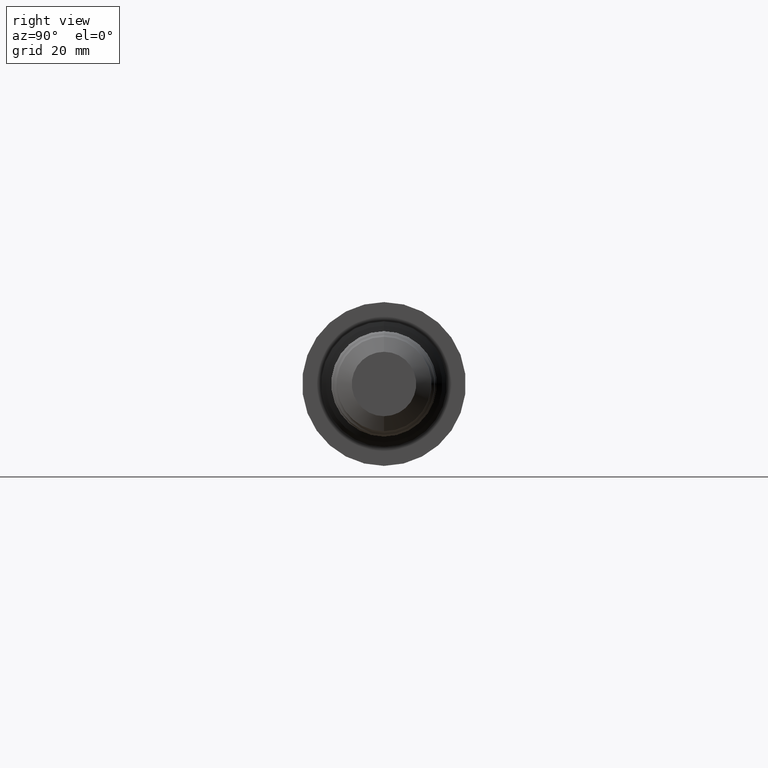
[diagram: clean part render]
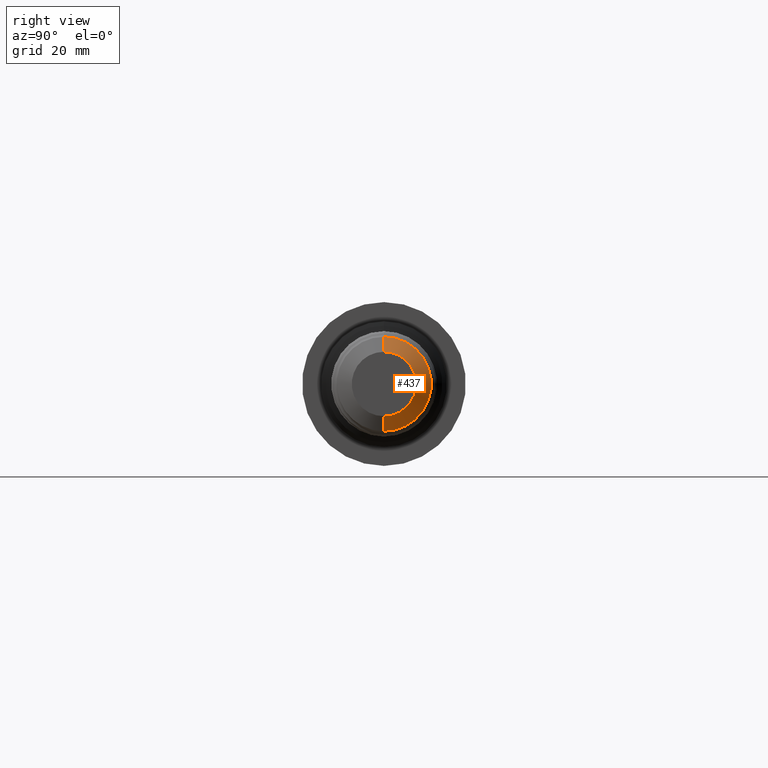
[diagram: same view with one face highlighted and labeled with its STEP entity id]
A machine part, right view. The second image highlights one B-rep face of the part: STEP entity #437.
In plain terms, the highlighted conical surface has half-angle 61 deg.
Its self-contained STEP definition (entity closure, byte-faithful):
#15 = ORIENTED_EDGE ( 'NONE', *, *, #916, .F. ) ;
#21 = DIRECTION ( 'NONE',  ( 0.0000000000000000000, 0.0000000000000000000, 1.000000000000000000 ) ) ;
#84 = CARTESIAN_POINT ( 'NONE',  ( 6.175000000000000711, 5.209647483572841703E-17, -0.4254000000000000004 ) ) ;
#86 = EDGE_CURVE ( 'NONE', #739, #327, #565, .T. ) ;
#97 = DIRECTION ( 'NONE',  ( -0.4848096202463349491, 0.0000000000000000000, 0.8746197071393968514 ) ) ;
#126 = ORIENTED_EDGE ( 'NONE', *, *, #784, .T. ) ;
#186 = EDGE_LOOP ( 'NONE', ( #126, #517, #201, #15 ) ) ;
#201 = ORIENTED_EDGE ( 'NONE', *, *, #590, .F. ) ;
#219 = CARTESIAN_POINT ( 'NONE',  ( 6.250000000000000000, 0.0000000000000000000, 0.0000000000000000000 ) ) ;
#221 = DIRECTION ( 'NONE',  ( -0.4848096202463349491, 1.071100224819457965E-16, -0.8746197071393968514 ) ) ;
#285 = LINE ( 'NONE', #761, #852 ) ;
#327 = VERTEX_POINT ( 'NONE', #84 ) ;
#331 = CARTESIAN_POINT ( 'NONE',  ( 6.175000000000000711, 0.0000000000000000000, 0.0000000000000000000 ) ) ;
#410 = DIRECTION ( 'NONE',  ( -1.000000000000000000, -0.0000000000000000000, -0.0000000000000000000 ) ) ;
#437 = ADVANCED_FACE ( 'NONE', ( #507 ), #868, .T. ) ;
#507 = FACE_OUTER_BOUND ( 'NONE', #186, .T. ) ;
#517 = ORIENTED_EDGE ( 'NONE', *, *, #86, .T. ) ;
#518 = CARTESIAN_POINT ( 'NONE',  ( 6.250000000000000000, 4.381151992697046304E-17, -0.2900964183546431707 ) ) ;
#565 = LINE ( 'NONE', #599, #914 ) ;
#590 = EDGE_CURVE ( 'NONE', #700, #327, #921, .T. ) ;
#599 = CARTESIAN_POINT ( 'NONE',  ( 6.250000000000000000, 3.552656501821252753E-17, -0.2900964183546431707 ) ) ;
#642 = CIRCLE ( 'NONE', #742, 0.2900964183546431707 ) ;
#644 = AXIS2_PLACEMENT_3D ( 'NONE', #331, #410, #790 ) ;
#656 = AXIS2_PLACEMENT_3D ( 'NONE', #219, #814, #919 ) ;
#659 = CARTESIAN_POINT ( 'NONE',  ( 6.250000000000000000, 0.0000000000000000000, 0.2900964183546431707 ) ) ;
#662 = VERTEX_POINT ( 'NONE', #659 ) ;
#683 = CARTESIAN_POINT ( 'NONE',  ( 6.250000000000000000, 0.0000000000000000000, 0.0000000000000000000 ) ) ;
#700 = VERTEX_POINT ( 'NONE', #862 ) ;
#739 = VERTEX_POINT ( 'NONE', #518 ) ;
#742 = AXIS2_PLACEMENT_3D ( 'NONE', #683, #904, #21 ) ;
#761 = CARTESIAN_POINT ( 'NONE',  ( 6.250000000000000000, 0.0000000000000000000, 0.2900964183546431707 ) ) ;
#784 = EDGE_CURVE ( 'NONE', #662, #739, #642, .T. ) ;
#790 = DIRECTION ( 'NONE',  ( 0.0000000000000000000, 0.0000000000000000000, 1.000000000000000000 ) ) ;
#814 = DIRECTION ( 'NONE',  ( -1.000000000000000000, -0.0000000000000000000, -0.0000000000000000000 ) ) ;
#852 = VECTOR ( 'NONE', #97, 39.37007874015748143 ) ;
#862 = CARTESIAN_POINT ( 'NONE',  ( 6.175000000000000711, 0.0000000000000000000, 0.4254000000000000004 ) ) ;
#868 = CONICAL_SURFACE ( 'NONE', #656, 0.2900964183546431707, 1.064650843716543394 ) ;
#904 = DIRECTION ( 'NONE',  ( -1.000000000000000000, -0.0000000000000000000, -0.0000000000000000000 ) ) ;
#914 = VECTOR ( 'NONE', #221, 39.37007874015748143 ) ;
#916 = EDGE_CURVE ( 'NONE', #662, #700, #285, .T. ) ;
#919 = DIRECTION ( 'NONE',  ( 0.0000000000000000000, 0.0000000000000000000, 1.000000000000000000 ) ) ;
#921 = CIRCLE ( 'NONE', #644, 0.4254000000000000004 ) ;